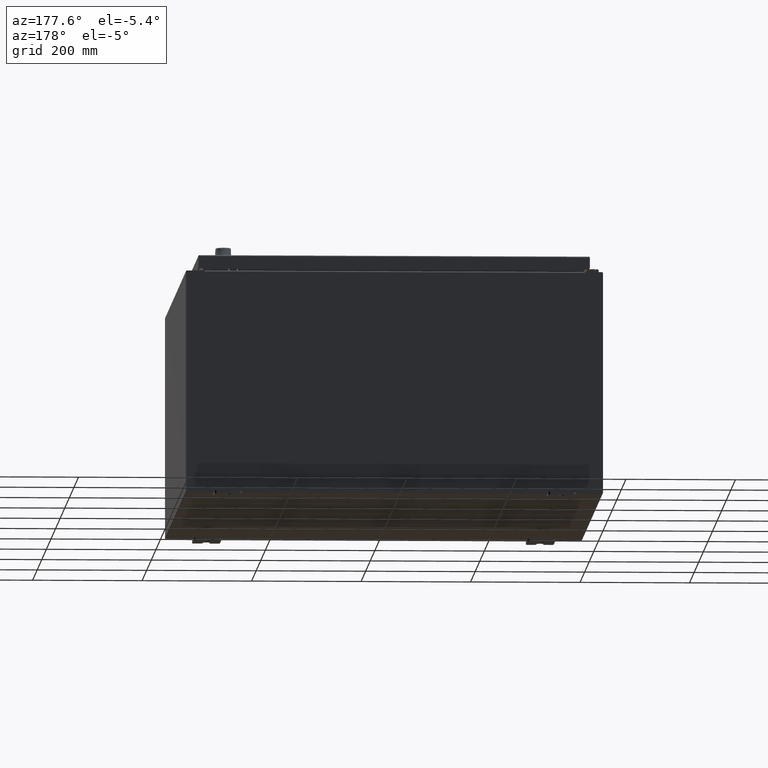
[diagram: clean part render]
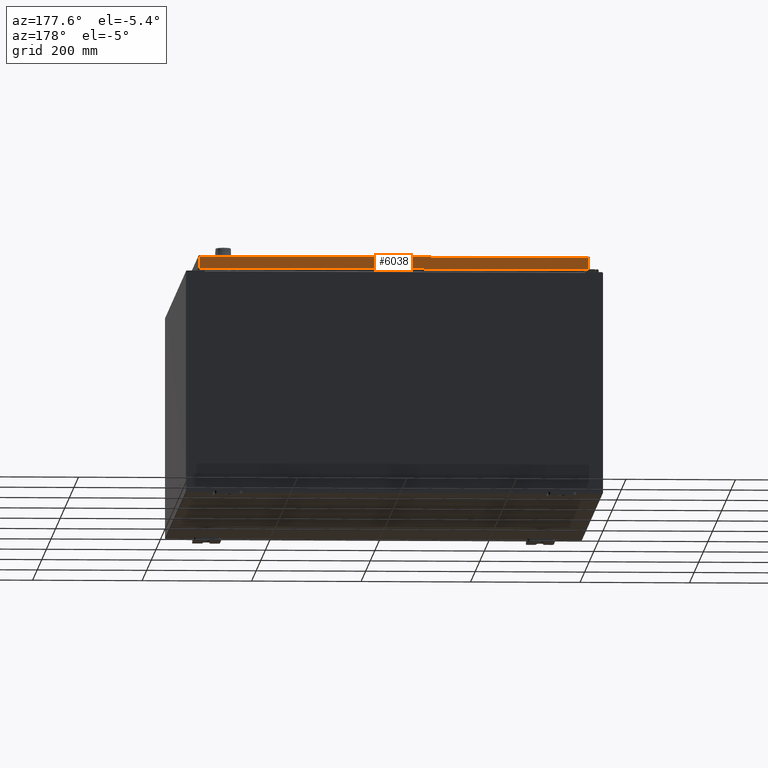
[diagram: same view with one face highlighted and labeled with its STEP entity id]
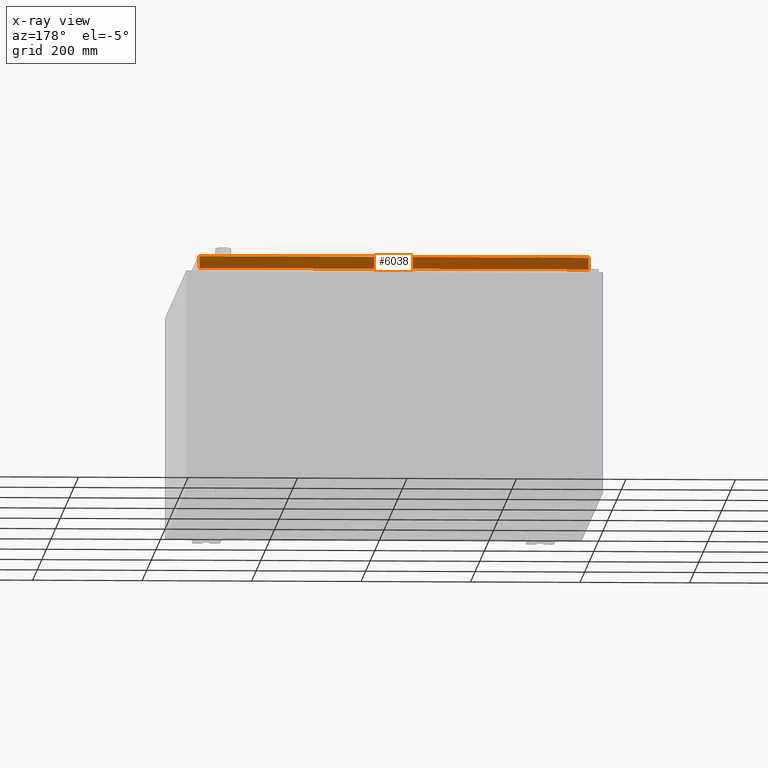
[diagram: x-ray of the same camera — body ghosted, the highlighted face saturated]
A machine part, auxiliary view. The second image highlights one B-rep face of the part: STEP entity #6038.
The next image is the same camera in x-ray: the body ghosted, the highlighted face saturated — about 0% of this face is hidden behind the body in this view.
In plain terms, the highlighted planar face has unit normal (0, -1, -0).
Its self-contained STEP definition (entity closure, byte-faithful):
#3524 = VECTOR ( 'NONE', #43282, 39.37007874015748100 ) ;
#6038 = ADVANCED_FACE ( 'NONE', ( #18320 ), #82749, .F. ) ;
#6770 = DIRECTION ( 'NONE',  ( -0.0000000000000000000, 2.532419924601855800E-015, -1.000000000000000000 ) ) ;
#11573 = EDGE_CURVE ( 'NONE', #40741, #39816, #117874, .T. ) ;
#16655 = CARTESIAN_POINT ( 'NONE',  ( -13.98915786437627600, 17.09400000000000500, -0.9377000000000033100 ) ) ;
#18032 = EDGE_CURVE ( 'NONE', #105938, #83495, #46868, .T. ) ;
#18320 = FACE_OUTER_BOUND ( 'NONE', #50241, .T. ) ;
#21278 = DIRECTION ( 'NONE',  ( 3.194218701939437300E-031, -1.000000000000000000, -2.532419924601855800E-015 ) ) ;
#21354 = VECTOR ( 'NONE', #6770, 39.37007874015748100 ) ;
#32837 = AXIS2_PLACEMENT_3D ( 'NONE', #36323, #21278, #98052 ) ;
#33615 = CARTESIAN_POINT ( 'NONE',  ( -14.07800000000000700, 17.09400000000000500, -0.9377000000000033100 ) ) ;
#36323 = CARTESIAN_POINT ( 'NONE',  ( -5.460197449095275600E-030, 17.09400000000000100, 4.354999984715570800E-014 ) ) ;
#39816 = VERTEX_POINT ( 'NONE', #77914 ) ;
#40741 = VERTEX_POINT ( 'NONE', #73040 ) ;
#43282 = DIRECTION ( 'NONE',  ( 1.000000000000000000, -0.0000000000000000000, 1.261330583805775800E-016 ) ) ;
#43745 = LINE ( 'NONE', #94033, #66200 ) ;
#46170 = DIRECTION ( 'NONE',  ( -1.000000000000000000, -5.159891749286783700E-031, 7.762034361881697200E-017 ) ) ;
#46868 = LINE ( 'NONE', #112063, #21354 ) ;
#48571 = ORIENTED_EDGE ( 'NONE', *, *, #18032, .F. ) ;
#50241 = EDGE_LOOP ( 'NONE', ( #90403, #115381, #55843, #48571 ) ) ;
#55843 = ORIENTED_EDGE ( 'NONE', *, *, #108531, .F. ) ;
#57499 = LINE ( 'NONE', #33615, #3524 ) ;
#66200 = VECTOR ( 'NONE', #46170, 39.37007874015748100 ) ;
#66819 = VECTOR ( 'NONE', #99328, 39.37007874015748100 ) ;
#73040 = CARTESIAN_POINT ( 'NONE',  ( 13.98915786437626500, 17.09400000000000100, -0.08770000000000226200 ) ) ;
#77914 = CARTESIAN_POINT ( 'NONE',  ( 13.98915786437626500, 17.09400000000000500, -0.9376999999999997600 ) ) ;
#82749 = PLANE ( 'NONE',  #32837 ) ;
#83495 = VERTEX_POINT ( 'NONE', #16655 ) ;
#90403 = ORIENTED_EDGE ( 'NONE', *, *, #112938, .F. ) ;
#94033 = CARTESIAN_POINT ( 'NONE',  ( -14.07800000000000700, 17.09400000000000100, -0.08770000000000008300 ) ) ;
#98052 = DIRECTION ( 'NONE',  ( 0.0000000000000000000, 2.532419924601855800E-015, -1.000000000000000000 ) ) ;
#98927 = CARTESIAN_POINT ( 'NONE',  ( 13.98915786437626400, 17.09400000000000100, 4.354999984715570800E-014 ) ) ;
#99328 = DIRECTION ( 'NONE',  ( 0.0000000000000000000, 2.532419924601855800E-015, -1.000000000000000000 ) ) ;
#105938 = VERTEX_POINT ( 'NONE', #113320 ) ;
#108531 = EDGE_CURVE ( 'NONE', #83495, #39816, #57499, .T. ) ;
#112063 = CARTESIAN_POINT ( 'NONE',  ( -13.98915786437627600, 17.09400000000000100, -0.07469999999999980800 ) ) ;
#112938 = EDGE_CURVE ( 'NONE', #40741, #105938, #43745, .T. ) ;
#113320 = CARTESIAN_POINT ( 'NONE',  ( -13.98915786437627800, 17.09400000000000100, -0.08770000000000118000 ) ) ;
#115381 = ORIENTED_EDGE ( 'NONE', *, *, #11573, .T. ) ;
#117874 = LINE ( 'NONE', #98927, #66819 ) ;